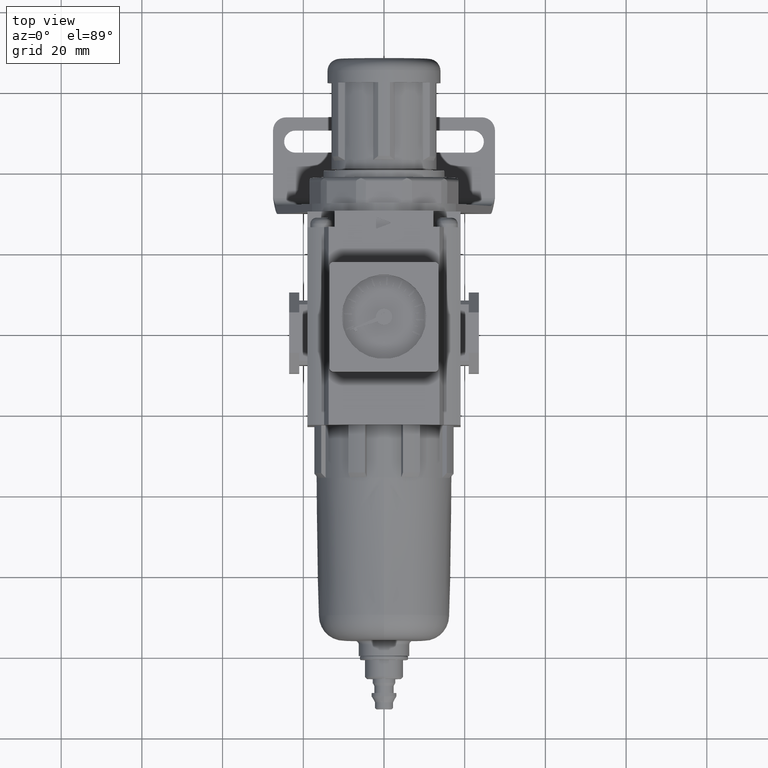
[diagram: clean part render]
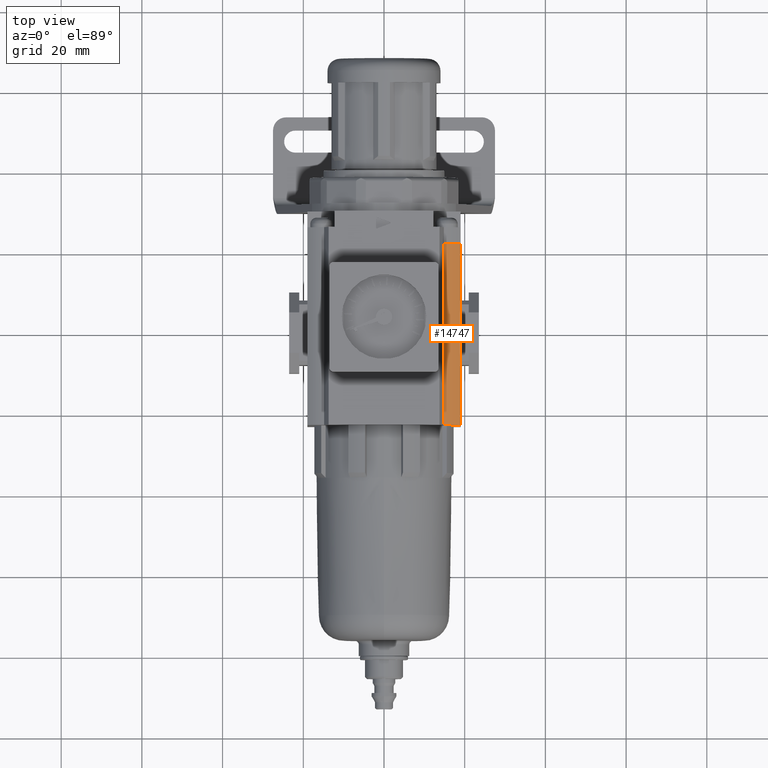
[diagram: same view with one face highlighted and labeled with its STEP entity id]
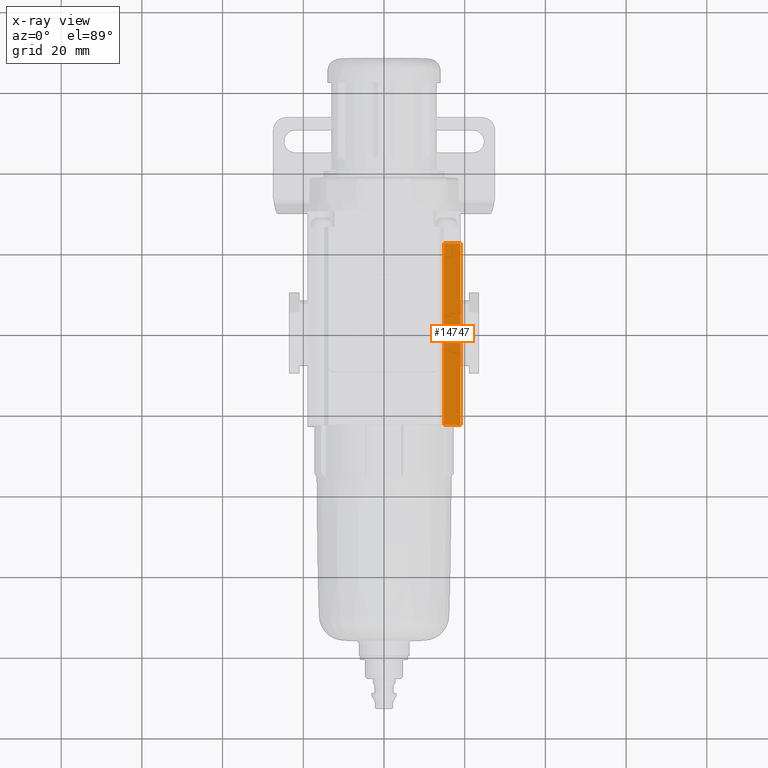
[diagram: x-ray of the same camera — body ghosted, the highlighted face saturated]
A machine part, top view. The second image highlights one B-rep face of the part: STEP entity #14747.
The next image is the same camera in x-ray: the body ghosted, the highlighted face saturated — about 0% of this face is hidden behind the body in this view.
In plain terms, the highlighted cylindrical surface (partial cylindrical patch) has radius 12 mm, axis along (0, 1, -0).
Its self-contained STEP definition (entity closure, byte-faithful):
#244 = CARTESIAN_POINT ( 'NONE',  ( 19.00000000000001100, -23.00000000000001400, 14.99999999999999800 ) ) ;
#390 = CARTESIAN_POINT ( 'NONE',  ( 14.84191070279862900, -23.00000000000001400, 17.00000000000000000 ) ) ;
#509 = VERTEX_POINT ( 'NONE', #5236 ) ;
#1220 = ORIENTED_EDGE ( 'NONE', *, *, #11358, .T. ) ;
#1616 = ORIENTED_EDGE ( 'NONE', *, *, #12886, .F. ) ;
#2328 = AXIS2_PLACEMENT_3D ( 'NONE', #10071, #2464, #11343 ) ;
#2388 = ORIENTED_EDGE ( 'NONE', *, *, #14490, .T. ) ;
#2464 = DIRECTION ( 'NONE',  ( -0.0000000000000000000, -1.000000000000000000, -0.0000000000000000000 ) ) ;
#2719 = VERTEX_POINT ( 'NONE', #10286 ) ;
#3140 = VERTEX_POINT ( 'NONE', #12863 ) ;
#3867 = CARTESIAN_POINT ( 'NONE',  ( 11.81651334209691700, -23.00000000000001400, 5.387637156467293100 ) ) ;
#5129 = DIRECTION ( 'NONE',  ( 1.000000000000000000, 0.0000000000000000000, 0.0000000000000000000 ) ) ;
#5236 = CARTESIAN_POINT ( 'NONE',  ( 19.00000000000001100, -23.00000000000001400, 14.99999999999999800 ) ) ;
#5790 = CARTESIAN_POINT ( 'NONE',  ( 19.00000000000001400, 21.99999999999997900, 14.99999999999999800 ) ) ;
#6019 = VECTOR ( 'NONE', #9125, 1000.000000000000000 ) ;
#7091 = CARTESIAN_POINT ( 'NONE',  ( 11.81651334209691700, -23.00000000000001400, 5.387637156467293100 ) ) ;
#9125 = DIRECTION ( 'NONE',  ( 9.130123557772672000E-017, 1.000000000000000000, -0.0000000000000000000 ) ) ;
#9208 = FACE_OUTER_BOUND ( 'NONE', #15979, .T. ) ;
#9640 = AXIS2_PLACEMENT_3D ( 'NONE', #7091, #10885, #12113 ) ;
#9835 = EDGE_CURVE ( 'NONE', #15686, #2719, #10721, .T. ) ;
#10071 = CARTESIAN_POINT ( 'NONE',  ( 11.81651334209691800, 21.99999999999999300, 5.387637156467293100 ) ) ;
#10245 = LINE ( 'NONE', #390, #14007 ) ;
#10286 = CARTESIAN_POINT ( 'NONE',  ( 14.84191070279863200, 21.99999999999997900, 17.00000000000000000 ) ) ;
#10721 = CIRCLE ( 'NONE', #2328, 11.99999999999999500 ) ;
#10885 = DIRECTION ( 'NONE',  ( 9.130123557772672000E-017, 1.000000000000000000, -0.0000000000000000000 ) ) ;
#11262 = CIRCLE ( 'NONE', #11526, 11.99999999999999500 ) ;
#11343 = DIRECTION ( 'NONE',  ( -6.216092455583561400E-015, 0.0000000000000000000, 1.000000000000000000 ) ) ;
#11358 = EDGE_CURVE ( 'NONE', #3140, #509, #11262, .T. ) ;
#11526 = AXIS2_PLACEMENT_3D ( 'NONE', #3867, #12767, #5129 ) ;
#12113 = DIRECTION ( 'NONE',  ( -1.000000000000000000, 0.0000000000000000000, 0.0000000000000000000 ) ) ;
#12188 = CYLINDRICAL_SURFACE ( 'NONE', #9640, 11.99999999999999600 ) ;
#12634 = ORIENTED_EDGE ( 'NONE', *, *, #9835, .T. ) ;
#12767 = DIRECTION ( 'NONE',  ( 9.130123557772670800E-017, 1.000000000000000000, -0.0000000000000000000 ) ) ;
#12863 = CARTESIAN_POINT ( 'NONE',  ( 14.84191070279862900, -23.00000000000001400, 17.00000000000000000 ) ) ;
#12886 = EDGE_CURVE ( 'NONE', #3140, #2719, #10245, .T. ) ;
#13195 = LINE ( 'NONE', #244, #6019 ) ;
#14007 = VECTOR ( 'NONE', #14327, 1000.000000000000000 ) ;
#14327 = DIRECTION ( 'NONE',  ( 9.130123557772672000E-017, 1.000000000000000000, -0.0000000000000000000 ) ) ;
#14490 = EDGE_CURVE ( 'NONE', #509, #15686, #13195, .T. ) ;
#14747 = ADVANCED_FACE ( 'NONE', ( #9208 ), #12188, .T. ) ;
#15686 = VERTEX_POINT ( 'NONE', #5790 ) ;
#15979 = EDGE_LOOP ( 'NONE', ( #2388, #12634, #1616, #1220 ) ) ;